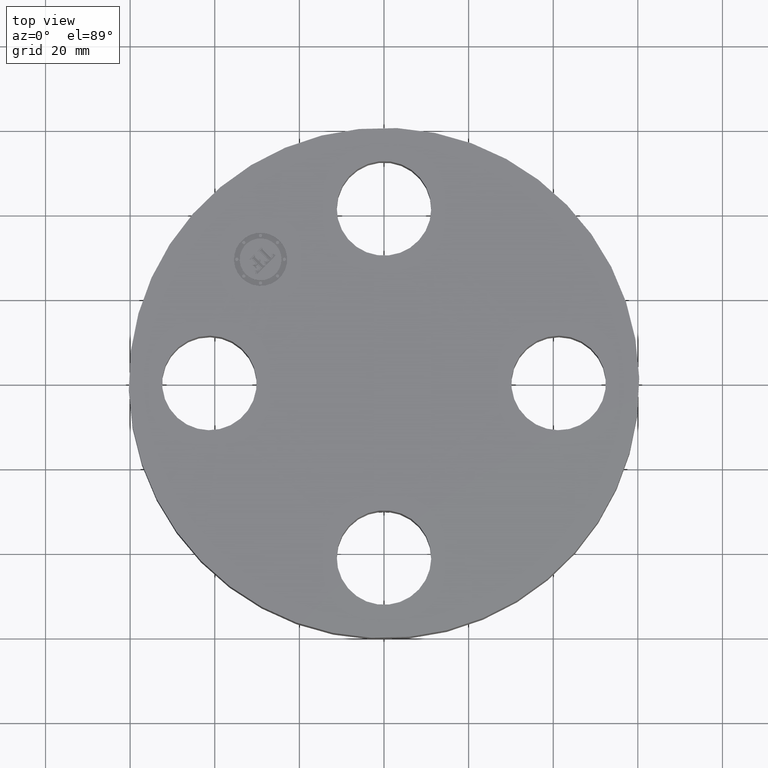
[diagram: clean part render]
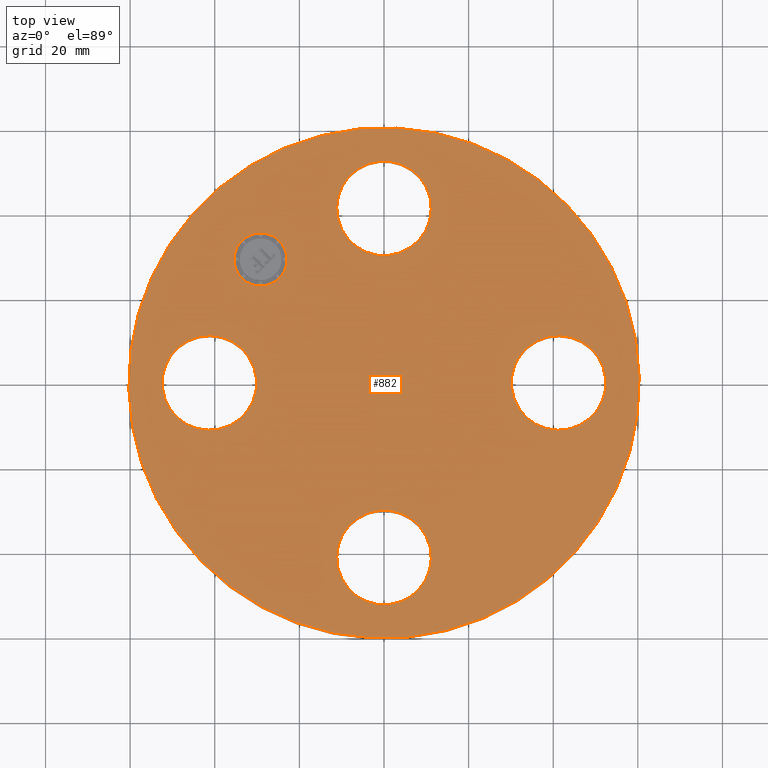
[diagram: same view with one face highlighted and labeled with its STEP entity id]
A machine part, top view. The second image highlights one B-rep face of the part: STEP entity #882.
In plain terms, the highlighted planar face has unit normal (0, 0, -1).
Its self-contained STEP definition (entity closure, byte-faithful):
#209=AXIS2_PLACEMENT_3D('Circle Axis2P3D',#207,#208,$) ;
#230=AXIS2_PLACEMENT_3D('Circle Axis2P3D',#228,#229,$) ;
#289=AXIS2_PLACEMENT_3D('Circle Axis2P3D',#287,#288,$) ;
#310=AXIS2_PLACEMENT_3D('Circle Axis2P3D',#308,#309,$) ;
#369=AXIS2_PLACEMENT_3D('Circle Axis2P3D',#367,#368,$) ;
#390=AXIS2_PLACEMENT_3D('Circle Axis2P3D',#388,#389,$) ;
#570=AXIS2_PLACEMENT_3D('Circle Axis2P3D',#568,#569,$) ;
#589=AXIS2_PLACEMENT_3D('Circle Axis2P3D',#587,#588,$) ;
#632=AXIS2_PLACEMENT_3D('Circle Axis2P3D',#630,#631,$) ;
#648=AXIS2_PLACEMENT_3D('Circle Axis2P3D',#646,#647,$) ;
#842=AXIS2_PLACEMENT_3D('Plane Axis2P3D',#839,#840,#841) ;
#866=AXIS2_PLACEMENT_3D('Circle Axis2P3D',#864,#865,$) ;
#875=AXIS2_PLACEMENT_3D('Circle Axis2P3D',#873,#874,$) ;
#171=CARTESIAN_POINT('Vertex',(-1.41405276302,0.386136327233,0.880000000004)) ;
#204=CARTESIAN_POINT('Vertex',(-1.83594723699,-0.386136327233,0.880000000004)) ;
#207=CARTESIAN_POINT('Axis2P3D Location',(-1.62500000001,-2.98507657293E-016,0.880000000004)) ;
#228=CARTESIAN_POINT('Axis2P3D Location',(-1.62500000001,-2.98507657293E-016,0.880000000004)) ;
#251=CARTESIAN_POINT('Vertex',(-0.386136327233,-1.41405276302,0.880000000004)) ;
#284=CARTESIAN_POINT('Vertex',(0.386136327233,-1.83594723699,0.880000000004)) ;
#287=CARTESIAN_POINT('Axis2P3D Location',(1.99005104862E-016,-1.62500000001,0.880000000004)) ;
#308=CARTESIAN_POINT('Axis2P3D Location',(1.99005104862E-016,-1.62500000001,0.880000000004)) ;
#331=CARTESIAN_POINT('Vertex',(1.41405276302,-0.386136327233,0.880000000004)) ;
#364=CARTESIAN_POINT('Vertex',(1.83594723699,0.386136327233,0.880000000004)) ;
#367=CARTESIAN_POINT('Axis2P3D Location',(1.62500000001,-1.8023868212E-016,0.880000000004)) ;
#388=CARTESIAN_POINT('Axis2P3D Location',(1.62500000001,-1.8023868212E-016,0.880000000004)) ;
#565=CARTESIAN_POINT('Vertex',(1.13863565419,2.0842585845,0.880000000004)) ;
#568=CARTESIAN_POINT('Axis2P3D Location',(0.,0.,0.880000000004)) ;
#572=CARTESIAN_POINT('Vertex',(-1.13863565419,-2.0842585845,0.880000000004)) ;
#587=CARTESIAN_POINT('Axis2P3D Location',(0.,0.,0.880000000004)) ;
#620=CARTESIAN_POINT('Vertex',(0.386136327233,1.41405276302,0.880000000004)) ;
#627=CARTESIAN_POINT('Vertex',(-0.386136327233,1.83594723699,0.880000000004)) ;
#630=CARTESIAN_POINT('Axis2P3D Location',(0.,1.62500000001,0.880000000004)) ;
#646=CARTESIAN_POINT('Axis2P3D Location',(0.,1.62500000001,0.880000000004)) ;
#839=CARTESIAN_POINT('Axis2P3D Location',(0.,2.37500000001,0.880000000004)) ;
#864=CARTESIAN_POINT('Axis2P3D Location',(-1.14904851943,1.14904851943,0.880000000004)) ;
#868=CARTESIAN_POINT('Vertex',(-1.32405744778,0.974039591088,0.880000000004)) ;
#870=CARTESIAN_POINT('Vertex',(-0.974039591088,1.32405744778,0.880000000004)) ;
#873=CARTESIAN_POINT('Axis2P3D Location',(-1.14904851943,1.14904851943,0.880000000004)) ;
#208=DIRECTION('Axis2P3D Direction',(0.,0.,-0.0393700787402)) ;
#229=DIRECTION('Axis2P3D Direction',(0.,0.,-0.0393700787402)) ;
#288=DIRECTION('Axis2P3D Direction',(-0.,0.,-0.0393700787402)) ;
#309=DIRECTION('Axis2P3D Direction',(-0.,0.,-0.0393700787402)) ;
#368=DIRECTION('Axis2P3D Direction',(0.,-0.,-0.0393700787402)) ;
#389=DIRECTION('Axis2P3D Direction',(0.,-0.,-0.0393700787402)) ;
#569=DIRECTION('Axis2P3D Direction',(0.,0.,-0.0393700787402)) ;
#588=DIRECTION('Axis2P3D Direction',(0.,0.,-0.0393700787402)) ;
#631=DIRECTION('Axis2P3D Direction',(0.,-0.,-0.0393700787402)) ;
#647=DIRECTION('Axis2P3D Direction',(0.,-0.,-0.0393700787402)) ;
#840=DIRECTION('Axis2P3D Direction',(0.,0.,-0.0393700787402)) ;
#841=DIRECTION('Axis2P3D XDirection',(0.0393700787402,0.,0.)) ;
#865=DIRECTION('Axis2P3D Direction',(0.,0.,-0.0393700787402)) ;
#874=DIRECTION('Axis2P3D Direction',(0.,0.,-0.0393700787402)) ;
#845=ORIENTED_EDGE('',*,*,#574,.F.) ;
#846=ORIENTED_EDGE('',*,*,#591,.F.) ;
#849=ORIENTED_EDGE('',*,*,#650,.T.) ;
#850=ORIENTED_EDGE('',*,*,#634,.T.) ;
#853=ORIENTED_EDGE('',*,*,#371,.T.) ;
#854=ORIENTED_EDGE('',*,*,#392,.T.) ;
#857=ORIENTED_EDGE('',*,*,#291,.T.) ;
#858=ORIENTED_EDGE('',*,*,#312,.T.) ;
#861=ORIENTED_EDGE('',*,*,#211,.T.) ;
#862=ORIENTED_EDGE('',*,*,#232,.T.) ;
#879=ORIENTED_EDGE('',*,*,#872,.T.) ;
#880=ORIENTED_EDGE('',*,*,#877,.T.) ;
#851=FACE_BOUND('',#848,.T.) ;
#855=FACE_BOUND('',#852,.T.) ;
#859=FACE_BOUND('',#856,.T.) ;
#863=FACE_BOUND('',#860,.T.) ;
#881=FACE_BOUND('',#878,.T.) ;
#882=ADVANCED_FACE('PartBody',(#847,#851,#855,#859,#863,#881),#843,.F.) ;
#210=CIRCLE('generated circle',#209,0.440000000002) ;
#231=CIRCLE('generated circle',#230,0.440000000002) ;
#290=CIRCLE('generated circle',#289,0.440000000002) ;
#311=CIRCLE('generated circle',#310,0.440000000002) ;
#370=CIRCLE('generated circle',#369,0.440000000002) ;
#391=CIRCLE('generated circle',#390,0.440000000002) ;
#571=CIRCLE('generated circle',#570,2.37500000001) ;
#590=CIRCLE('generated circle',#589,2.37500000001) ;
#633=CIRCLE('generated circle',#632,0.440000000002) ;
#649=CIRCLE('generated circle',#648,0.440000000002) ;
#867=CIRCLE('generated circle',#866,0.247500000001) ;
#876=CIRCLE('generated circle',#875,0.247500000001) ;
#211=EDGE_CURVE('',#172,#205,#210,.T.) ;
#232=EDGE_CURVE('',#205,#172,#231,.T.) ;
#291=EDGE_CURVE('',#252,#285,#290,.T.) ;
#312=EDGE_CURVE('',#285,#252,#311,.T.) ;
#371=EDGE_CURVE('',#332,#365,#370,.T.) ;
#392=EDGE_CURVE('',#365,#332,#391,.T.) ;
#574=EDGE_CURVE('',#566,#573,#571,.T.) ;
#591=EDGE_CURVE('',#573,#566,#590,.T.) ;
#634=EDGE_CURVE('',#621,#628,#633,.T.) ;
#650=EDGE_CURVE('',#628,#621,#649,.T.) ;
#872=EDGE_CURVE('',#869,#871,#867,.T.) ;
#877=EDGE_CURVE('',#871,#869,#876,.T.) ;
#844=EDGE_LOOP('',(#845,#846)) ;
#848=EDGE_LOOP('',(#849,#850)) ;
#852=EDGE_LOOP('',(#853,#854)) ;
#856=EDGE_LOOP('',(#857,#858)) ;
#860=EDGE_LOOP('',(#861,#862)) ;
#878=EDGE_LOOP('',(#879,#880)) ;
#847=FACE_OUTER_BOUND('',#844,.T.) ;
#843=PLANE('',#842) ;
#172=VERTEX_POINT('',#171) ;
#205=VERTEX_POINT('',#204) ;
#252=VERTEX_POINT('',#251) ;
#285=VERTEX_POINT('',#284) ;
#332=VERTEX_POINT('',#331) ;
#365=VERTEX_POINT('',#364) ;
#566=VERTEX_POINT('',#565) ;
#573=VERTEX_POINT('',#572) ;
#621=VERTEX_POINT('',#620) ;
#628=VERTEX_POINT('',#627) ;
#869=VERTEX_POINT('',#868) ;
#871=VERTEX_POINT('',#870) ;